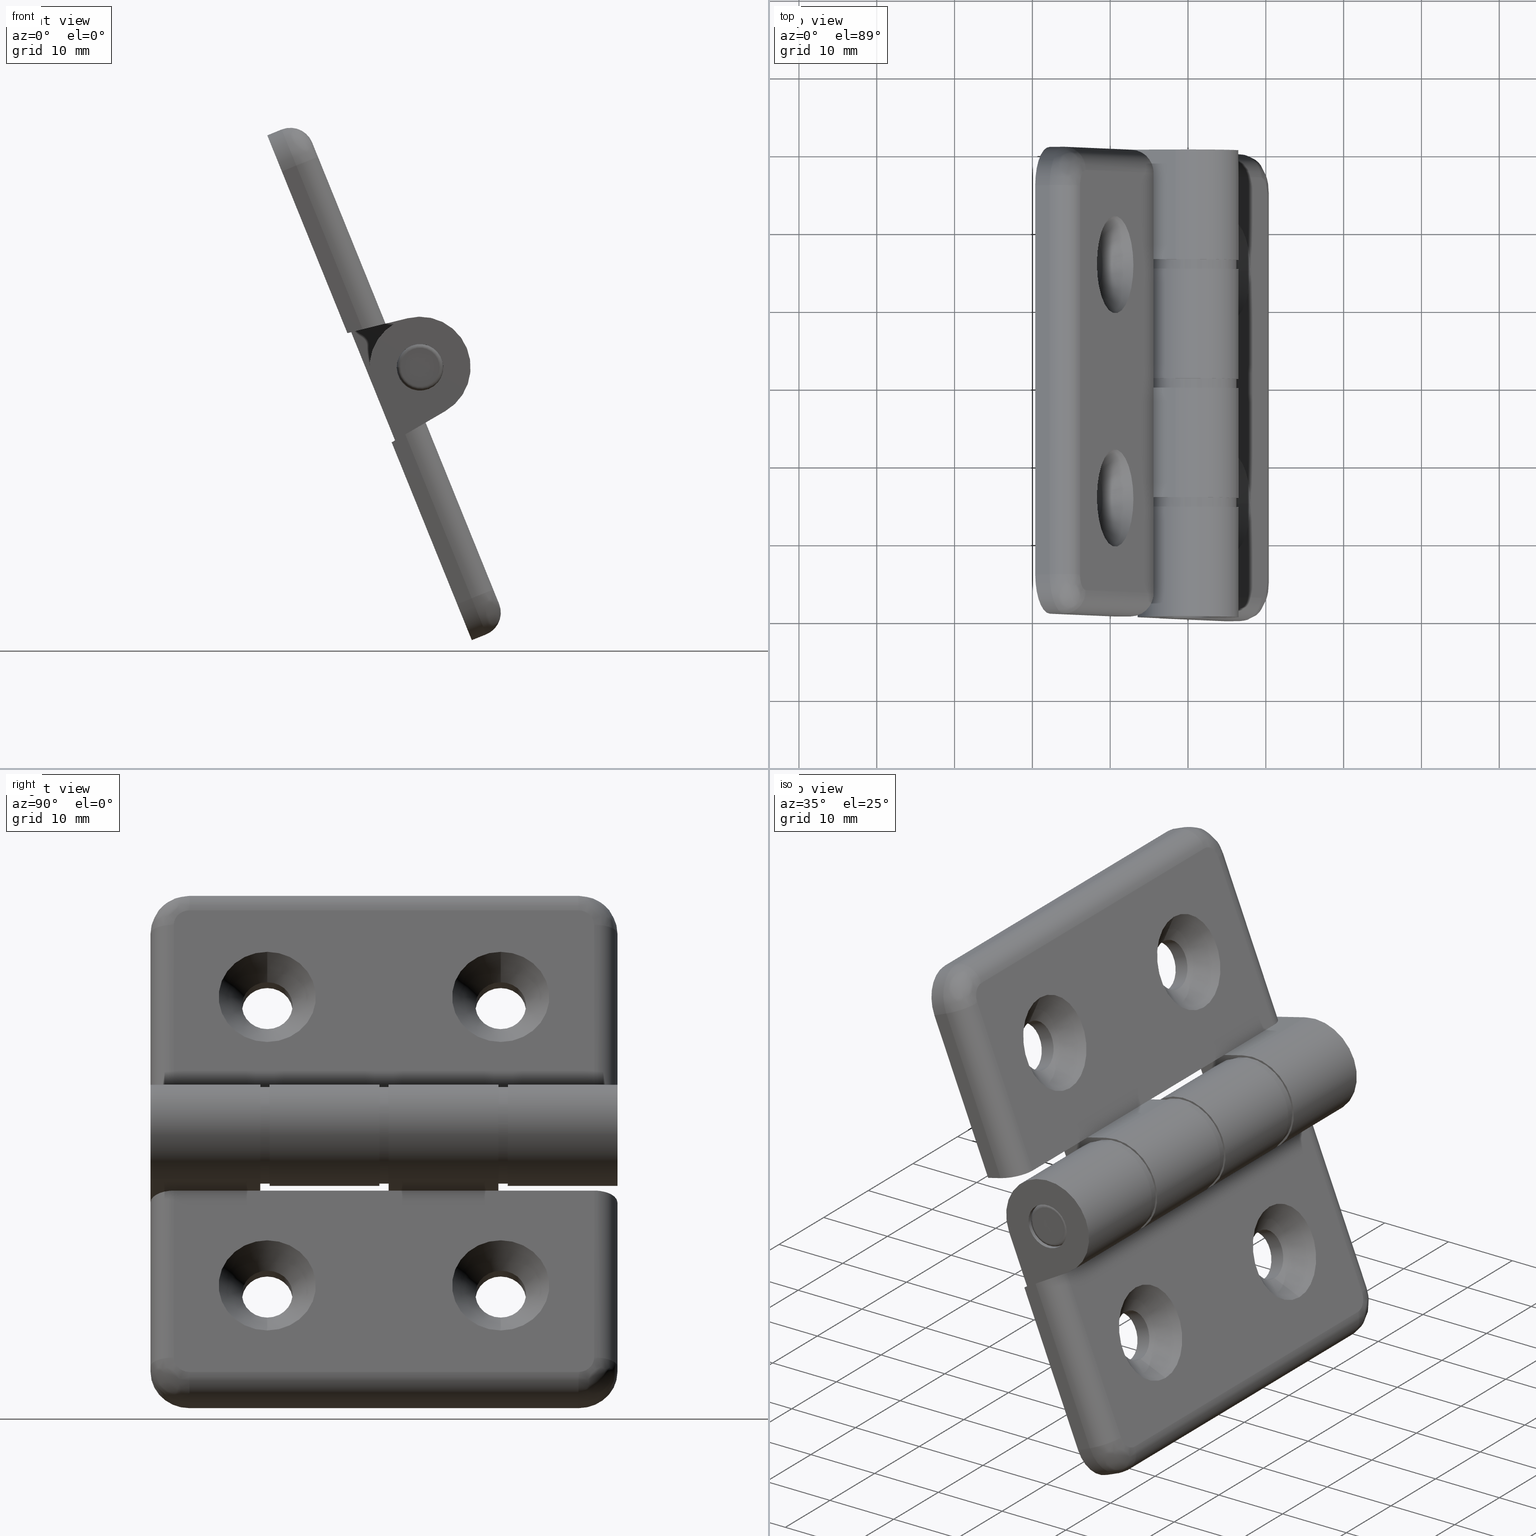
[diagram: canonical four-view strip — front | top / right | iso, engineering-drawing reading convention]
A machine part, canonical four-view strip (front | top / right | iso — engineering-drawing reading convention). The complete STEP part file that produces these views, byte-faithful:
ISO-10303-21;
HEADER;
/* Generated by software containing ST-Developer
 * from STEP Tools, Inc. (www.steptools.com) 
 */

FILE_DESCRIPTION(
/* description */ (''),
/* implementation_level */ '2;1');

FILE_NAME(
/* name */ '\\\\SYNOLOGYNAS\\web\\db2\\HC6070\\\X2\B3C4BA74\X0\\\DR_HC
6070.stp',
/* time_stamp */ '2023-03-06T14:38:37+09:00',
/* author */ ('user'),
/* organization */ (''),
/* preprocessor_version */ 'ST-DEVELOPER v15.6',
/* originating_system */ 'Autodesk Inventor 2015',
/* authorisation */ '');

FILE_SCHEMA (('AUTOMOTIVE_DESIGN { 1 0 10303 214 3 1 1 }'));
ENDSEC;

DATA;
#10=MECHANICAL_DESIGN_GEOMETRIC_PRESENTATION_REPRESENTATION('',(#44,#43,
#45),#1080);
#11=ITEM_DEFINED_TRANSFORMATION($,$,#612,#685);
#12=ITEM_DEFINED_TRANSFORMATION($,$,#665,#686);
#13=ITEM_DEFINED_TRANSFORMATION($,$,#612,#687);
#14=ITEM_DEFINED_TRANSFORMATION($,$,#675,#688);
#15=ITEM_DEFINED_TRANSFORMATION($,$,#675,#689);
#16=ITEM_DEFINED_TRANSFORMATION($,$,#675,#690);
#17=(
REPRESENTATION_RELATIONSHIP($,$,#1101,#1104)
REPRESENTATION_RELATIONSHIP_WITH_TRANSFORMATION(#11)
SHAPE_REPRESENTATION_RELATIONSHIP()
);
#18=(
REPRESENTATION_RELATIONSHIP($,$,#1102,#1104)
REPRESENTATION_RELATIONSHIP_WITH_TRANSFORMATION(#12)
SHAPE_REPRESENTATION_RELATIONSHIP()
);
#19=(
REPRESENTATION_RELATIONSHIP($,$,#1101,#1104)
REPRESENTATION_RELATIONSHIP_WITH_TRANSFORMATION(#13)
SHAPE_REPRESENTATION_RELATIONSHIP()
);
#20=(
REPRESENTATION_RELATIONSHIP($,$,#1103,#1104)
REPRESENTATION_RELATIONSHIP_WITH_TRANSFORMATION(#14)
SHAPE_REPRESENTATION_RELATIONSHIP()
);
#21=(
REPRESENTATION_RELATIONSHIP($,$,#1103,#1104)
REPRESENTATION_RELATIONSHIP_WITH_TRANSFORMATION(#15)
SHAPE_REPRESENTATION_RELATIONSHIP()
);
#22=(
REPRESENTATION_RELATIONSHIP($,$,#1103,#1104)
REPRESENTATION_RELATIONSHIP_WITH_TRANSFORMATION(#16)
SHAPE_REPRESENTATION_RELATIONSHIP()
);
#23=CONTEXT_DEPENDENT_SHAPE_REPRESENTATION(#17,#1095);
#24=CONTEXT_DEPENDENT_SHAPE_REPRESENTATION(#18,#1096);
#25=CONTEXT_DEPENDENT_SHAPE_REPRESENTATION(#19,#1097);
#26=CONTEXT_DEPENDENT_SHAPE_REPRESENTATION(#20,#1098);
#27=CONTEXT_DEPENDENT_SHAPE_REPRESENTATION(#21,#1099);
#28=CONTEXT_DEPENDENT_SHAPE_REPRESENTATION(#22,#1100);
#29=NEXT_ASSEMBLY_USAGE_OCCURRENCE('DR_HC6070-40:1',$,$,#1109,#1106,$);
#30=NEXT_ASSEMBLY_USAGE_OCCURRENCE('DR_HC6070-40-PIN:2',$,$,#1109,#1107,
$);
#31=NEXT_ASSEMBLY_USAGE_OCCURRENCE('DR_HC6070-40:2',$,$,#1109,#1106,$);
#32=NEXT_ASSEMBLY_USAGE_OCCURRENCE('DR_HC6060-WASHER:2',$,$,#1109,#1108,
$);
#33=NEXT_ASSEMBLY_USAGE_OCCURRENCE('DR_HC6060-WASHER:3',$,$,#1109,#1108,
$);
#34=NEXT_ASSEMBLY_USAGE_OCCURRENCE('DR_HC6060-WASHER:4',$,$,#1109,#1108,
$);
#35=TOROIDAL_SURFACE('',#666,2.5,0.5);
#36=TOROIDAL_SURFACE('',#672,2.5,0.5);
#37=SHAPE_REPRESENTATION_RELATIONSHIP('SRR','None',#1101,#40);
#38=SHAPE_REPRESENTATION_RELATIONSHIP('SRR','None',#1102,#41);
#39=SHAPE_REPRESENTATION_RELATIONSHIP('SRR','None',#1103,#42);
#40=ADVANCED_BREP_SHAPE_REPRESENTATION($,(#46),#1076);
#41=ADVANCED_BREP_SHAPE_REPRESENTATION($,(#47),#1077);
#42=ADVANCED_BREP_SHAPE_REPRESENTATION($,(#48),#1078);
#43=STYLED_ITEM('',(#1126),#46);
#44=STYLED_ITEM('',(#1127),#47);
#45=STYLED_ITEM('',(#1128),#48);
#46=MANIFOLD_SOLID_BREP('\X2\C194B9ACB4DC\X0\1',#609);
#47=MANIFOLD_SOLID_BREP('\X2\C194B9ACB4DC\X0\1',#610);
#48=MANIFOLD_SOLID_BREP('\X2\C194B9ACB4DC\X0\1',#611);
#49=PLANE('',#636);
#50=PLANE('',#637);
#51=PLANE('',#640);
#52=PLANE('',#643);
#53=PLANE('',#646);
#54=PLANE('',#647);
#55=PLANE('',#650);
#56=PLANE('',#653);
#57=PLANE('',#654);
#58=PLANE('',#655);
#59=PLANE('',#658);
#60=PLANE('',#661);
#61=PLANE('',#664);
#62=PLANE('',#671);
#63=PLANE('',#674);
#64=PLANE('',#682);
#65=PLANE('',#683);
#66=(
BOUNDED_SURFACE()
B_SPLINE_SURFACE(2,2,((#912,#913,#914),(#915,#916,#917),(#918,#919,#920)),
 .UNSPECIFIED.,.F.,.F.,.F.)
B_SPLINE_SURFACE_WITH_KNOTS((3,3),(3,3),(-1.5707963267949,6.50041828025802E-17),
(-3.14159265358979,-1.5707963267949),.UNSPECIFIED.)
GEOMETRIC_REPRESENTATION_ITEM()
RATIONAL_B_SPLINE_SURFACE(((1.,0.707106781186548,1.),(0.707106781186547,
0.5,0.707106781186547),(1.,0.707106781186548,1.)))
REPRESENTATION_ITEM('')
SURFACE()
);
#67=(
BOUNDED_SURFACE()
B_SPLINE_SURFACE(2,2,((#932,#933,#934),(#935,#936,#937),(#938,#939,#940)),
 .UNSPECIFIED.,.F.,.F.,.F.)
B_SPLINE_SURFACE_WITH_KNOTS((3,3),(3,3),(-1.5707963267949,4.62592926927149E-17),
(1.5707963267949,3.14159265358979),.UNSPECIFIED.)
GEOMETRIC_REPRESENTATION_ITEM()
RATIONAL_B_SPLINE_SURFACE(((1.,0.707106781186548,1.),(0.707106781186546,
0.499999999999999,0.707106781186546),(1.,0.707106781186548,1.)))
REPRESENTATION_ITEM('')
SURFACE()
);
#68=ELLIPSE('',#625,3.03076923076923,3.);
#69=ELLIPSE('',#635,3.03076923076923,3.);
#70=LINE('',#908,#107);
#71=LINE('',#911,#108);
#72=LINE('',#930,#109);
#73=LINE('',#931,#110);
#74=LINE('',#950,#111);
#75=LINE('',#951,#112);
#76=LINE('',#954,#113);
#77=LINE('',#956,#114);
#78=LINE('',#958,#115);
#79=LINE('',#960,#116);
#80=LINE('',#962,#117);
#81=LINE('',#964,#118);
#82=LINE('',#966,#119);
#83=LINE('',#968,#120);
#84=LINE('',#970,#121);
#85=LINE('',#971,#122);
#86=LINE('',#974,#123);
#87=LINE('',#975,#124);
#88=LINE('',#978,#125);
#89=LINE('',#982,#126);
#90=LINE('',#983,#127);
#91=LINE('',#986,#128);
#92=LINE('',#990,#129);
#93=LINE('',#993,#130);
#94=LINE('',#994,#131);
#95=LINE('',#999,#132);
#96=LINE('',#1000,#133);
#97=LINE('',#1006,#134);
#98=LINE('',#1007,#135);
#99=LINE('',#1011,#136);
#100=LINE('',#1013,#137);
#101=LINE('',#1019,#138);
#102=LINE('',#1020,#139);
#103=LINE('',#1027,#140);
#104=LINE('',#1028,#141);
#105=LINE('',#1032,#142);
#106=LINE('',#1034,#143);
#107=VECTOR('',#717,23.1461538461538);
#108=VECTOR('',#720,22.7153846153846);
#109=VECTOR('',#731,50.);
#110=VECTOR('',#732,50.);
#111=VECTOR('',#743,23.1461538461538);
#112=VECTOR('',#744,22.7153846153846);
#113=VECTOR('',#747,2.02051282051282);
#114=VECTOR('',#748,60.);
#115=VECTOR('',#749,0.505128205128205);
#116=VECTOR('',#750,14.1);
#117=VECTOR('',#751,4.54615384615384);
#118=VECTOR('',#752,16.5);
#119=VECTOR('',#753,4.54615384615384);
#120=VECTOR('',#754,14.1);
#121=VECTOR('',#755,4.54615384615384);
#122=VECTOR('',#756,12.3);
#123=VECTOR('',#759,1.99999999999999);
#124=VECTOR('',#760,22.4282051282051);
#125=VECTOR('',#763,2.);
#126=VECTOR('',#768,1.99999999999999);
#127=VECTOR('',#769,50.);
#128=VECTOR('',#772,1.99999999999999);
#129=VECTOR('',#777,5.98461538461539);
#130=VECTOR('',#780,7.5);
#131=VECTOR('',#781,22.4282051282051);
#132=VECTOR('',#788,14.1);
#133=VECTOR('',#789,11.1);
#134=VECTOR('',#796,2.95384615384616);
#135=VECTOR('',#797,14.1);
#136=VECTOR('',#802,14.1);
#137=VECTOR('',#805,7.5);
#138=VECTOR('',#812,2.95384615384616);
#139=VECTOR('',#813,7.5);
#140=VECTOR('',#820,7.5);
#141=VECTOR('',#821,2.95384615384616);
#142=VECTOR('',#826,14.1);
#143=VECTOR('',#829,14.1);
#144=CYLINDRICAL_SURFACE('',#616,3.25);
#145=CYLINDRICAL_SURFACE('',#621,3.25);
#146=CYLINDRICAL_SURFACE('',#623,3.);
#147=CYLINDRICAL_SURFACE('',#629,3.);
#148=CYLINDRICAL_SURFACE('',#634,3.);
#149=CYLINDRICAL_SURFACE('',#638,5.);
#150=CYLINDRICAL_SURFACE('',#641,5.);
#151=CYLINDRICAL_SURFACE('',#648,3.);
#152=CYLINDRICAL_SURFACE('',#651,6.5);
#153=CYLINDRICAL_SURFACE('',#662,6.5);
#154=CYLINDRICAL_SURFACE('',#663,3.);
#155=CYLINDRICAL_SURFACE('',#669,3.);
#156=CYLINDRICAL_SURFACE('',#676,3.);
#157=CYLINDRICAL_SURFACE('',#679,6.25);
#158=FACE_BOUND('',#217,.T.);
#159=FACE_BOUND('',#219,.T.);
#160=FACE_BOUND('',#221,.T.);
#161=FACE_BOUND('',#223,.T.);
#162=FACE_BOUND('',#235,.T.);
#163=FACE_BOUND('',#237,.T.);
#164=FACE_BOUND('',#238,.T.);
#165=FACE_BOUND('',#240,.T.);
#166=FACE_BOUND('',#241,.T.);
#167=FACE_BOUND('',#243,.T.);
#168=FACE_BOUND('',#248,.T.);
#169=FACE_BOUND('',#250,.T.);
#170=FACE_BOUND('',#252,.T.);
#171=FACE_BOUND('',#256,.T.);
#172=FACE_BOUND('',#259,.T.);
#173=FACE_BOUND('',#261,.T.);
#174=FACE_BOUND('',#264,.T.);
#175=FACE_BOUND('',#267,.T.);
#176=FACE_BOUND('',#269,.T.);
#177=FACE_BOUND('',#271,.T.);
#178=FACE_BOUND('',#273,.T.);
#179=FACE_OUTER_BOUND('',#216,.T.);
#180=FACE_OUTER_BOUND('',#218,.T.);
#181=FACE_OUTER_BOUND('',#220,.T.);
#182=FACE_OUTER_BOUND('',#222,.T.);
#183=FACE_OUTER_BOUND('',#224,.T.);
#184=FACE_OUTER_BOUND('',#225,.T.);
#185=FACE_OUTER_BOUND('',#226,.T.);
#186=FACE_OUTER_BOUND('',#227,.T.);
#187=FACE_OUTER_BOUND('',#228,.T.);
#188=FACE_OUTER_BOUND('',#229,.T.);
#189=FACE_OUTER_BOUND('',#230,.T.);
#190=FACE_OUTER_BOUND('',#231,.T.);
#191=FACE_OUTER_BOUND('',#232,.T.);
#192=FACE_OUTER_BOUND('',#233,.T.);
#193=FACE_OUTER_BOUND('',#234,.T.);
#194=FACE_OUTER_BOUND('',#236,.T.);
#195=FACE_OUTER_BOUND('',#239,.T.);
#196=FACE_OUTER_BOUND('',#242,.T.);
#197=FACE_OUTER_BOUND('',#244,.T.);
#198=FACE_OUTER_BOUND('',#245,.T.);
#199=FACE_OUTER_BOUND('',#246,.T.);
#200=FACE_OUTER_BOUND('',#247,.T.);
#201=FACE_OUTER_BOUND('',#249,.T.);
#202=FACE_OUTER_BOUND('',#251,.T.);
#203=FACE_OUTER_BOUND('',#253,.T.);
#204=FACE_OUTER_BOUND('',#254,.T.);
#205=FACE_OUTER_BOUND('',#255,.T.);
#206=FACE_OUTER_BOUND('',#257,.T.);
#207=FACE_OUTER_BOUND('',#258,.T.);
#208=FACE_OUTER_BOUND('',#260,.T.);
#209=FACE_OUTER_BOUND('',#262,.T.);
#210=FACE_OUTER_BOUND('',#263,.T.);
#211=FACE_OUTER_BOUND('',#265,.T.);
#212=FACE_OUTER_BOUND('',#266,.T.);
#213=FACE_OUTER_BOUND('',#268,.T.);
#214=FACE_OUTER_BOUND('',#270,.T.);
#215=FACE_OUTER_BOUND('',#272,.T.);
#216=EDGE_LOOP('',(#428));
#217=EDGE_LOOP('',(#429));
#218=EDGE_LOOP('',(#430));
#219=EDGE_LOOP('',(#431));
#220=EDGE_LOOP('',(#432));
#221=EDGE_LOOP('',(#433));
#222=EDGE_LOOP('',(#434));
#223=EDGE_LOOP('',(#435));
#224=EDGE_LOOP('',(#436,#437,#438,#439));
#225=EDGE_LOOP('',(#440,#441,#442,#443));
#226=EDGE_LOOP('',(#444,#445,#446,#447));
#227=EDGE_LOOP('',(#448,#449,#450,#451));
#228=EDGE_LOOP('',(#452,#453,#454,#455));
#229=EDGE_LOOP('',(#456,#457,#458,#459,#460,#461,#462,#463,#464,#465,#466));
#230=EDGE_LOOP('',(#467,#468,#469,#470));
#231=EDGE_LOOP('',(#471,#472,#473,#474));
#232=EDGE_LOOP('',(#475,#476,#477,#478));
#233=EDGE_LOOP('',(#479,#480,#481,#482));
#234=EDGE_LOOP('',(#483,#484,#485,#486,#487,#488,#489));
#235=EDGE_LOOP('',(#490));
#236=EDGE_LOOP('',(#491,#492,#493,#494,#495,#496));
#237=EDGE_LOOP('',(#497));
#238=EDGE_LOOP('',(#498));
#239=EDGE_LOOP('',(#499,#500,#501,#502,#503,#504,#505,#506,#507));
#240=EDGE_LOOP('',(#508));
#241=EDGE_LOOP('',(#509));
#242=EDGE_LOOP('',(#510));
#243=EDGE_LOOP('',(#511));
#244=EDGE_LOOP('',(#512,#513,#514,#515,#516));
#245=EDGE_LOOP('',(#517,#518,#519,#520));
#246=EDGE_LOOP('',(#521,#522,#523,#524));
#247=EDGE_LOOP('',(#525,#526,#527,#528));
#248=EDGE_LOOP('',(#529));
#249=EDGE_LOOP('',(#530,#531,#532,#533));
#250=EDGE_LOOP('',(#534));
#251=EDGE_LOOP('',(#535,#536,#537,#538));
#252=EDGE_LOOP('',(#539));
#253=EDGE_LOOP('',(#540,#541,#542,#543));
#254=EDGE_LOOP('',(#544,#545,#546,#547));
#255=EDGE_LOOP('',(#548));
#256=EDGE_LOOP('',(#549));
#257=EDGE_LOOP('',(#550,#551,#552,#553));
#258=EDGE_LOOP('',(#554));
#259=EDGE_LOOP('',(#555));
#260=EDGE_LOOP('',(#556));
#261=EDGE_LOOP('',(#557));
#262=EDGE_LOOP('',(#558));
#263=EDGE_LOOP('',(#559));
#264=EDGE_LOOP('',(#560));
#265=EDGE_LOOP('',(#561));
#266=EDGE_LOOP('',(#562));
#267=EDGE_LOOP('',(#563));
#268=EDGE_LOOP('',(#564));
#269=EDGE_LOOP('',(#565));
#270=EDGE_LOOP('',(#566));
#271=EDGE_LOOP('',(#567));
#272=EDGE_LOOP('',(#568));
#273=EDGE_LOOP('',(#569));
#274=CIRCLE('',#614,6.25);
#275=CIRCLE('',#615,3.25);
#276=CIRCLE('',#617,3.25);
#277=CIRCLE('',#619,6.25);
#278=CIRCLE('',#620,3.25);
#279=CIRCLE('',#622,3.25);
#280=CIRCLE('',#624,3.);
#281=CIRCLE('',#626,3.);
#282=CIRCLE('',#627,2.);
#283=CIRCLE('',#628,5.);
#284=CIRCLE('',#630,3.);
#285=CIRCLE('',#631,3.00000000000001);
#286=CIRCLE('',#632,2.);
#287=CIRCLE('',#633,5.);
#288=CIRCLE('',#639,5.);
#289=CIRCLE('',#642,5.);
#290=CIRCLE('',#644,6.5);
#291=CIRCLE('',#645,3.);
#292=CIRCLE('',#649,3.);
#293=CIRCLE('',#652,6.5);
#294=CIRCLE('',#656,6.5);
#295=CIRCLE('',#657,3.);
#296=CIRCLE('',#659,6.5);
#297=CIRCLE('',#660,3.);
#298=CIRCLE('',#667,3.);
#299=CIRCLE('',#668,2.5);
#300=CIRCLE('',#670,3.);
#301=CIRCLE('',#673,2.5);
#302=CIRCLE('',#677,3.);
#303=CIRCLE('',#678,3.);
#304=CIRCLE('',#680,6.25);
#305=CIRCLE('',#681,6.25);
#306=VERTEX_POINT('',#888);
#307=VERTEX_POINT('',#890);
#308=VERTEX_POINT('',#893);
#309=VERTEX_POINT('',#896);
#310=VERTEX_POINT('',#898);
#311=VERTEX_POINT('',#901);
#312=VERTEX_POINT('',#904);
#313=VERTEX_POINT('',#905);
#314=VERTEX_POINT('',#907);
#315=VERTEX_POINT('',#909);
#316=VERTEX_POINT('',#921);
#317=VERTEX_POINT('',#922);
#318=VERTEX_POINT('',#927);
#319=VERTEX_POINT('',#928);
#320=VERTEX_POINT('',#941);
#321=VERTEX_POINT('',#942);
#322=VERTEX_POINT('',#947);
#323=VERTEX_POINT('',#948);
#324=VERTEX_POINT('',#953);
#325=VERTEX_POINT('',#955);
#326=VERTEX_POINT('',#957);
#327=VERTEX_POINT('',#959);
#328=VERTEX_POINT('',#961);
#329=VERTEX_POINT('',#963);
#330=VERTEX_POINT('',#965);
#331=VERTEX_POINT('',#967);
#332=VERTEX_POINT('',#969);
#333=VERTEX_POINT('',#973);
#334=VERTEX_POINT('',#977);
#335=VERTEX_POINT('',#981);
#336=VERTEX_POINT('',#985);
#337=VERTEX_POINT('',#989);
#338=VERTEX_POINT('',#991);
#339=VERTEX_POINT('',#995);
#340=VERTEX_POINT('',#1002);
#341=VERTEX_POINT('',#1005);
#342=VERTEX_POINT('',#1009);
#343=VERTEX_POINT('',#1016);
#344=VERTEX_POINT('',#1017);
#345=VERTEX_POINT('',#1021);
#346=VERTEX_POINT('',#1024);
#347=VERTEX_POINT('',#1025);
#348=VERTEX_POINT('',#1029);
#349=VERTEX_POINT('',#1039);
#350=VERTEX_POINT('',#1041);
#351=VERTEX_POINT('',#1044);
#352=VERTEX_POINT('',#1048);
#353=VERTEX_POINT('',#1053);
#354=VERTEX_POINT('',#1055);
#355=VERTEX_POINT('',#1058);
#356=VERTEX_POINT('',#1060);
#357=EDGE_CURVE('',#306,#306,#274,.T.);
#358=EDGE_CURVE('',#307,#307,#275,.T.);
#359=EDGE_CURVE('',#308,#308,#276,.T.);
#360=EDGE_CURVE('',#309,#309,#277,.T.);
#361=EDGE_CURVE('',#310,#310,#278,.T.);
#362=EDGE_CURVE('',#311,#311,#279,.T.);
#363=EDGE_CURVE('',#312,#313,#280,.T.);
#364=EDGE_CURVE('',#313,#314,#70,.T.);
#365=EDGE_CURVE('',#314,#315,#68,.F.);
#366=EDGE_CURVE('',#315,#312,#71,.T.);
#367=EDGE_CURVE('',#316,#317,#281,.T.);
#368=EDGE_CURVE('',#317,#313,#282,.T.);
#369=EDGE_CURVE('',#312,#316,#283,.T.);
#370=EDGE_CURVE('',#318,#319,#284,.T.);
#371=EDGE_CURVE('',#319,#317,#72,.T.);
#372=EDGE_CURVE('',#316,#318,#73,.T.);
#373=EDGE_CURVE('',#320,#321,#285,.T.);
#374=EDGE_CURVE('',#321,#319,#286,.T.);
#375=EDGE_CURVE('',#318,#320,#287,.T.);
#376=EDGE_CURVE('',#322,#323,#69,.T.);
#377=EDGE_CURVE('',#323,#321,#74,.T.);
#378=EDGE_CURVE('',#320,#322,#75,.T.);
#379=EDGE_CURVE('',#322,#324,#76,.T.);
#380=EDGE_CURVE('',#324,#325,#77,.T.);
#381=EDGE_CURVE('',#325,#326,#78,.T.);
#382=EDGE_CURVE('',#326,#327,#79,.T.);
#383=EDGE_CURVE('',#327,#328,#80,.T.);
#384=EDGE_CURVE('',#328,#329,#81,.T.);
#385=EDGE_CURVE('',#329,#330,#82,.T.);
#386=EDGE_CURVE('',#330,#331,#83,.T.);
#387=EDGE_CURVE('',#331,#332,#84,.T.);
#388=EDGE_CURVE('',#332,#323,#85,.T.);
#389=EDGE_CURVE('',#333,#320,#86,.T.);
#390=EDGE_CURVE('',#333,#324,#87,.T.);
#391=EDGE_CURVE('',#318,#334,#88,.T.);
#392=EDGE_CURVE('',#334,#333,#288,.T.);
#393=EDGE_CURVE('',#335,#316,#89,.T.);
#394=EDGE_CURVE('',#335,#334,#90,.T.);
#395=EDGE_CURVE('',#312,#336,#91,.T.);
#396=EDGE_CURVE('',#336,#335,#289,.T.);
#397=EDGE_CURVE('',#337,#315,#92,.T.);
#398=EDGE_CURVE('',#338,#337,#290,.T.);
#399=EDGE_CURVE('',#326,#338,#93,.T.);
#400=EDGE_CURVE('',#336,#325,#94,.T.);
#401=EDGE_CURVE('',#339,#339,#291,.T.);
#402=EDGE_CURVE('',#329,#332,#95,.T.);
#403=EDGE_CURVE('',#314,#328,#96,.T.);
#404=EDGE_CURVE('',#340,#340,#292,.T.);
#405=EDGE_CURVE('',#328,#341,#97,.T.);
#406=EDGE_CURVE('',#337,#341,#98,.T.);
#407=EDGE_CURVE('',#341,#342,#293,.T.);
#408=EDGE_CURVE('',#338,#342,#99,.T.);
#409=EDGE_CURVE('',#342,#327,#100,.T.);
#410=EDGE_CURVE('',#343,#344,#294,.T.);
#411=EDGE_CURVE('',#332,#343,#101,.T.);
#412=EDGE_CURVE('',#344,#331,#102,.T.);
#413=EDGE_CURVE('',#345,#345,#295,.T.);
#414=EDGE_CURVE('',#346,#347,#296,.T.);
#415=EDGE_CURVE('',#330,#346,#103,.T.);
#416=EDGE_CURVE('',#347,#329,#104,.T.);
#417=EDGE_CURVE('',#348,#348,#297,.T.);
#418=EDGE_CURVE('',#346,#344,#105,.T.);
#419=EDGE_CURVE('',#347,#343,#106,.T.);
#420=EDGE_CURVE('',#349,#349,#298,.T.);
#421=EDGE_CURVE('',#350,#350,#299,.T.);
#422=EDGE_CURVE('',#351,#351,#300,.T.);
#423=EDGE_CURVE('',#352,#352,#301,.T.);
#424=EDGE_CURVE('',#353,#353,#302,.T.);
#425=EDGE_CURVE('',#354,#354,#303,.T.);
#426=EDGE_CURVE('',#355,#355,#304,.T.);
#427=EDGE_CURVE('',#356,#356,#305,.T.);
#428=ORIENTED_EDGE('',*,*,#357,.F.);
#429=ORIENTED_EDGE('',*,*,#358,.F.);
#430=ORIENTED_EDGE('',*,*,#359,.F.);
#431=ORIENTED_EDGE('',*,*,#358,.T.);
#432=ORIENTED_EDGE('',*,*,#360,.F.);
#433=ORIENTED_EDGE('',*,*,#361,.F.);
#434=ORIENTED_EDGE('',*,*,#362,.F.);
#435=ORIENTED_EDGE('',*,*,#361,.T.);
#436=ORIENTED_EDGE('',*,*,#363,.T.);
#437=ORIENTED_EDGE('',*,*,#364,.T.);
#438=ORIENTED_EDGE('',*,*,#365,.T.);
#439=ORIENTED_EDGE('',*,*,#366,.T.);
#440=ORIENTED_EDGE('',*,*,#367,.T.);
#441=ORIENTED_EDGE('',*,*,#368,.T.);
#442=ORIENTED_EDGE('',*,*,#363,.F.);
#443=ORIENTED_EDGE('',*,*,#369,.T.);
#444=ORIENTED_EDGE('',*,*,#370,.T.);
#445=ORIENTED_EDGE('',*,*,#371,.T.);
#446=ORIENTED_EDGE('',*,*,#367,.F.);
#447=ORIENTED_EDGE('',*,*,#372,.T.);
#448=ORIENTED_EDGE('',*,*,#373,.T.);
#449=ORIENTED_EDGE('',*,*,#374,.T.);
#450=ORIENTED_EDGE('',*,*,#370,.F.);
#451=ORIENTED_EDGE('',*,*,#375,.T.);
#452=ORIENTED_EDGE('',*,*,#376,.T.);
#453=ORIENTED_EDGE('',*,*,#377,.T.);
#454=ORIENTED_EDGE('',*,*,#373,.F.);
#455=ORIENTED_EDGE('',*,*,#378,.T.);
#456=ORIENTED_EDGE('',*,*,#376,.F.);
#457=ORIENTED_EDGE('',*,*,#379,.T.);
#458=ORIENTED_EDGE('',*,*,#380,.T.);
#459=ORIENTED_EDGE('',*,*,#381,.T.);
#460=ORIENTED_EDGE('',*,*,#382,.T.);
#461=ORIENTED_EDGE('',*,*,#383,.T.);
#462=ORIENTED_EDGE('',*,*,#384,.T.);
#463=ORIENTED_EDGE('',*,*,#385,.T.);
#464=ORIENTED_EDGE('',*,*,#386,.T.);
#465=ORIENTED_EDGE('',*,*,#387,.T.);
#466=ORIENTED_EDGE('',*,*,#388,.T.);
#467=ORIENTED_EDGE('',*,*,#378,.F.);
#468=ORIENTED_EDGE('',*,*,#389,.F.);
#469=ORIENTED_EDGE('',*,*,#390,.T.);
#470=ORIENTED_EDGE('',*,*,#379,.F.);
#471=ORIENTED_EDGE('',*,*,#375,.F.);
#472=ORIENTED_EDGE('',*,*,#391,.T.);
#473=ORIENTED_EDGE('',*,*,#392,.T.);
#474=ORIENTED_EDGE('',*,*,#389,.T.);
#475=ORIENTED_EDGE('',*,*,#372,.F.);
#476=ORIENTED_EDGE('',*,*,#393,.F.);
#477=ORIENTED_EDGE('',*,*,#394,.T.);
#478=ORIENTED_EDGE('',*,*,#391,.F.);
#479=ORIENTED_EDGE('',*,*,#369,.F.);
#480=ORIENTED_EDGE('',*,*,#395,.T.);
#481=ORIENTED_EDGE('',*,*,#396,.T.);
#482=ORIENTED_EDGE('',*,*,#393,.T.);
#483=ORIENTED_EDGE('',*,*,#366,.F.);
#484=ORIENTED_EDGE('',*,*,#397,.F.);
#485=ORIENTED_EDGE('',*,*,#398,.F.);
#486=ORIENTED_EDGE('',*,*,#399,.F.);
#487=ORIENTED_EDGE('',*,*,#381,.F.);
#488=ORIENTED_EDGE('',*,*,#400,.F.);
#489=ORIENTED_EDGE('',*,*,#395,.F.);
#490=ORIENTED_EDGE('',*,*,#401,.T.);
#491=ORIENTED_EDGE('',*,*,#392,.F.);
#492=ORIENTED_EDGE('',*,*,#394,.F.);
#493=ORIENTED_EDGE('',*,*,#396,.F.);
#494=ORIENTED_EDGE('',*,*,#400,.T.);
#495=ORIENTED_EDGE('',*,*,#380,.F.);
#496=ORIENTED_EDGE('',*,*,#390,.F.);
#497=ORIENTED_EDGE('',*,*,#359,.T.);
#498=ORIENTED_EDGE('',*,*,#362,.T.);
#499=ORIENTED_EDGE('',*,*,#377,.F.);
#500=ORIENTED_EDGE('',*,*,#388,.F.);
#501=ORIENTED_EDGE('',*,*,#402,.F.);
#502=ORIENTED_EDGE('',*,*,#384,.F.);
#503=ORIENTED_EDGE('',*,*,#403,.F.);
#504=ORIENTED_EDGE('',*,*,#364,.F.);
#505=ORIENTED_EDGE('',*,*,#368,.F.);
#506=ORIENTED_EDGE('',*,*,#371,.F.);
#507=ORIENTED_EDGE('',*,*,#374,.F.);
#508=ORIENTED_EDGE('',*,*,#357,.T.);
#509=ORIENTED_EDGE('',*,*,#360,.T.);
#510=ORIENTED_EDGE('',*,*,#401,.F.);
#511=ORIENTED_EDGE('',*,*,#404,.T.);
#512=ORIENTED_EDGE('',*,*,#403,.T.);
#513=ORIENTED_EDGE('',*,*,#405,.T.);
#514=ORIENTED_EDGE('',*,*,#406,.F.);
#515=ORIENTED_EDGE('',*,*,#397,.T.);
#516=ORIENTED_EDGE('',*,*,#365,.F.);
#517=ORIENTED_EDGE('',*,*,#407,.T.);
#518=ORIENTED_EDGE('',*,*,#408,.F.);
#519=ORIENTED_EDGE('',*,*,#398,.T.);
#520=ORIENTED_EDGE('',*,*,#406,.T.);
#521=ORIENTED_EDGE('',*,*,#409,.T.);
#522=ORIENTED_EDGE('',*,*,#382,.F.);
#523=ORIENTED_EDGE('',*,*,#399,.T.);
#524=ORIENTED_EDGE('',*,*,#408,.T.);
#525=ORIENTED_EDGE('',*,*,#407,.F.);
#526=ORIENTED_EDGE('',*,*,#405,.F.);
#527=ORIENTED_EDGE('',*,*,#383,.F.);
#528=ORIENTED_EDGE('',*,*,#409,.F.);
#529=ORIENTED_EDGE('',*,*,#404,.F.);
#530=ORIENTED_EDGE('',*,*,#410,.F.);
#531=ORIENTED_EDGE('',*,*,#411,.F.);
#532=ORIENTED_EDGE('',*,*,#387,.F.);
#533=ORIENTED_EDGE('',*,*,#412,.F.);
#534=ORIENTED_EDGE('',*,*,#413,.F.);
#535=ORIENTED_EDGE('',*,*,#414,.F.);
#536=ORIENTED_EDGE('',*,*,#415,.F.);
#537=ORIENTED_EDGE('',*,*,#385,.F.);
#538=ORIENTED_EDGE('',*,*,#416,.F.);
#539=ORIENTED_EDGE('',*,*,#417,.F.);
#540=ORIENTED_EDGE('',*,*,#412,.T.);
#541=ORIENTED_EDGE('',*,*,#386,.F.);
#542=ORIENTED_EDGE('',*,*,#415,.T.);
#543=ORIENTED_EDGE('',*,*,#418,.T.);
#544=ORIENTED_EDGE('',*,*,#410,.T.);
#545=ORIENTED_EDGE('',*,*,#418,.F.);
#546=ORIENTED_EDGE('',*,*,#414,.T.);
#547=ORIENTED_EDGE('',*,*,#419,.T.);
#548=ORIENTED_EDGE('',*,*,#413,.T.);
#549=ORIENTED_EDGE('',*,*,#417,.T.);
#550=ORIENTED_EDGE('',*,*,#402,.T.);
#551=ORIENTED_EDGE('',*,*,#411,.T.);
#552=ORIENTED_EDGE('',*,*,#419,.F.);
#553=ORIENTED_EDGE('',*,*,#416,.T.);
#554=ORIENTED_EDGE('',*,*,#420,.T.);
#555=ORIENTED_EDGE('',*,*,#421,.T.);
#556=ORIENTED_EDGE('',*,*,#422,.F.);
#557=ORIENTED_EDGE('',*,*,#420,.F.);
#558=ORIENTED_EDGE('',*,*,#421,.F.);
#559=ORIENTED_EDGE('',*,*,#422,.T.);
#560=ORIENTED_EDGE('',*,*,#423,.T.);
#561=ORIENTED_EDGE('',*,*,#423,.F.);
#562=ORIENTED_EDGE('',*,*,#424,.F.);
#563=ORIENTED_EDGE('',*,*,#425,.F.);
#564=ORIENTED_EDGE('',*,*,#426,.F.);
#565=ORIENTED_EDGE('',*,*,#427,.F.);
#566=ORIENTED_EDGE('',*,*,#426,.T.);
#567=ORIENTED_EDGE('',*,*,#424,.T.);
#568=ORIENTED_EDGE('',*,*,#427,.T.);
#569=ORIENTED_EDGE('',*,*,#425,.T.);
#570=CONICAL_SURFACE('',#613,4.75,45.);
#571=CONICAL_SURFACE('',#618,4.75,45.);
#572=ADVANCED_FACE('',(#179,#158),#570,.F.);
#573=ADVANCED_FACE('',(#180,#159),#144,.F.);
#574=ADVANCED_FACE('',(#181,#160),#571,.F.);
#575=ADVANCED_FACE('',(#182,#161),#145,.F.);
#576=ADVANCED_FACE('',(#183),#146,.T.);
#577=ADVANCED_FACE('',(#184),#66,.F.);
#578=ADVANCED_FACE('',(#185),#147,.T.);
#579=ADVANCED_FACE('',(#186),#67,.F.);
#580=ADVANCED_FACE('',(#187),#148,.T.);
#581=ADVANCED_FACE('',(#188),#49,.F.);
#582=ADVANCED_FACE('',(#189),#50,.T.);
#583=ADVANCED_FACE('',(#190),#149,.T.);
#584=ADVANCED_FACE('',(#191),#51,.T.);
#585=ADVANCED_FACE('',(#192),#150,.T.);
#586=ADVANCED_FACE('',(#193,#162),#52,.F.);
#587=ADVANCED_FACE('',(#194,#163,#164),#53,.T.);
#588=ADVANCED_FACE('',(#195,#165,#166),#54,.T.);
#589=ADVANCED_FACE('',(#196,#167),#151,.F.);
#590=ADVANCED_FACE('',(#197),#55,.T.);
#591=ADVANCED_FACE('',(#198),#152,.T.);
#592=ADVANCED_FACE('',(#199),#56,.T.);
#593=ADVANCED_FACE('',(#200,#168),#57,.F.);
#594=ADVANCED_FACE('',(#201,#169),#58,.F.);
#595=ADVANCED_FACE('',(#202,#170),#59,.F.);
#596=ADVANCED_FACE('',(#203),#60,.T.);
#597=ADVANCED_FACE('',(#204),#153,.T.);
#598=ADVANCED_FACE('',(#205,#171),#154,.F.);
#599=ADVANCED_FACE('',(#206),#61,.T.);
#600=ADVANCED_FACE('',(#207,#172),#35,.T.);
#601=ADVANCED_FACE('',(#208,#173),#155,.T.);
#602=ADVANCED_FACE('',(#209),#62,.F.);
#603=ADVANCED_FACE('',(#210,#174),#36,.T.);
#604=ADVANCED_FACE('',(#211),#63,.T.);
#605=ADVANCED_FACE('',(#212,#175),#156,.F.);
#606=ADVANCED_FACE('',(#213,#176),#157,.T.);
#607=ADVANCED_FACE('',(#214,#177),#64,.T.);
#608=ADVANCED_FACE('',(#215,#178),#65,.F.);
#609=CLOSED_SHELL('',(#572,#573,#574,#575,#576,#577,#578,#579,#580,#581,
#582,#583,#584,#585,#586,#587,#588,#589,#590,#591,#592,#593,#594,#595,#596,
#597,#598,#599));
#610=CLOSED_SHELL('',(#600,#601,#602,#603,#604));
#611=CLOSED_SHELL('',(#605,#606,#607,#608));
#612=AXIS2_PLACEMENT_3D('placement',#886,#691,#692);
#613=AXIS2_PLACEMENT_3D('',#887,#693,#694);
#614=AXIS2_PLACEMENT_3D('',#889,#695,#696);
#615=AXIS2_PLACEMENT_3D('',#891,#697,#698);
#616=AXIS2_PLACEMENT_3D('',#892,#699,#700);
#617=AXIS2_PLACEMENT_3D('',#894,#701,#702);
#618=AXIS2_PLACEMENT_3D('',#895,#703,#704);
#619=AXIS2_PLACEMENT_3D('',#897,#705,#706);
#620=AXIS2_PLACEMENT_3D('',#899,#707,#708);
#621=AXIS2_PLACEMENT_3D('',#900,#709,#710);
#622=AXIS2_PLACEMENT_3D('',#902,#711,#712);
#623=AXIS2_PLACEMENT_3D('',#903,#713,#714);
#624=AXIS2_PLACEMENT_3D('',#906,#715,#716);
#625=AXIS2_PLACEMENT_3D('',#910,#718,#719);
#626=AXIS2_PLACEMENT_3D('',#923,#721,#722);
#627=AXIS2_PLACEMENT_3D('',#924,#723,#724);
#628=AXIS2_PLACEMENT_3D('',#925,#725,#726);
#629=AXIS2_PLACEMENT_3D('',#926,#727,#728);
#630=AXIS2_PLACEMENT_3D('',#929,#729,#730);
#631=AXIS2_PLACEMENT_3D('',#943,#733,#734);
#632=AXIS2_PLACEMENT_3D('',#944,#735,#736);
#633=AXIS2_PLACEMENT_3D('',#945,#737,#738);
#634=AXIS2_PLACEMENT_3D('',#946,#739,#740);
#635=AXIS2_PLACEMENT_3D('',#949,#741,#742);
#636=AXIS2_PLACEMENT_3D('',#952,#745,#746);
#637=AXIS2_PLACEMENT_3D('',#972,#757,#758);
#638=AXIS2_PLACEMENT_3D('',#976,#761,#762);
#639=AXIS2_PLACEMENT_3D('',#979,#764,#765);
#640=AXIS2_PLACEMENT_3D('',#980,#766,#767);
#641=AXIS2_PLACEMENT_3D('',#984,#770,#771);
#642=AXIS2_PLACEMENT_3D('',#987,#773,#774);
#643=AXIS2_PLACEMENT_3D('',#988,#775,#776);
#644=AXIS2_PLACEMENT_3D('',#992,#778,#779);
#645=AXIS2_PLACEMENT_3D('',#996,#782,#783);
#646=AXIS2_PLACEMENT_3D('',#997,#784,#785);
#647=AXIS2_PLACEMENT_3D('',#998,#786,#787);
#648=AXIS2_PLACEMENT_3D('',#1001,#790,#791);
#649=AXIS2_PLACEMENT_3D('',#1003,#792,#793);
#650=AXIS2_PLACEMENT_3D('',#1004,#794,#795);
#651=AXIS2_PLACEMENT_3D('',#1008,#798,#799);
#652=AXIS2_PLACEMENT_3D('',#1010,#800,#801);
#653=AXIS2_PLACEMENT_3D('',#1012,#803,#804);
#654=AXIS2_PLACEMENT_3D('',#1014,#806,#807);
#655=AXIS2_PLACEMENT_3D('',#1015,#808,#809);
#656=AXIS2_PLACEMENT_3D('',#1018,#810,#811);
#657=AXIS2_PLACEMENT_3D('',#1022,#814,#815);
#658=AXIS2_PLACEMENT_3D('',#1023,#816,#817);
#659=AXIS2_PLACEMENT_3D('',#1026,#818,#819);
#660=AXIS2_PLACEMENT_3D('',#1030,#822,#823);
#661=AXIS2_PLACEMENT_3D('',#1031,#824,#825);
#662=AXIS2_PLACEMENT_3D('',#1033,#827,#828);
#663=AXIS2_PLACEMENT_3D('',#1035,#830,#831);
#664=AXIS2_PLACEMENT_3D('',#1036,#832,#833);
#665=AXIS2_PLACEMENT_3D('placement',#1037,#834,#835);
#666=AXIS2_PLACEMENT_3D('',#1038,#836,#837);
#667=AXIS2_PLACEMENT_3D('',#1040,#838,#839);
#668=AXIS2_PLACEMENT_3D('',#1042,#840,#841);
#669=AXIS2_PLACEMENT_3D('',#1043,#842,#843);
#670=AXIS2_PLACEMENT_3D('',#1045,#844,#845);
#671=AXIS2_PLACEMENT_3D('',#1046,#846,#847);
#672=AXIS2_PLACEMENT_3D('',#1047,#848,#849);
#673=AXIS2_PLACEMENT_3D('',#1049,#850,#851);
#674=AXIS2_PLACEMENT_3D('',#1050,#852,#853);
#675=AXIS2_PLACEMENT_3D('placement',#1051,#854,#855);
#676=AXIS2_PLACEMENT_3D('',#1052,#856,#857);
#677=AXIS2_PLACEMENT_3D('',#1054,#858,#859);
#678=AXIS2_PLACEMENT_3D('',#1056,#860,#861);
#679=AXIS2_PLACEMENT_3D('',#1057,#862,#863);
#680=AXIS2_PLACEMENT_3D('',#1059,#864,#865);
#681=AXIS2_PLACEMENT_3D('',#1061,#866,#867);
#682=AXIS2_PLACEMENT_3D('',#1062,#868,#869);
#683=AXIS2_PLACEMENT_3D('',#1063,#870,#871);
#684=AXIS2_PLACEMENT_3D('placement',#1064,#872,#873);
#685=AXIS2_PLACEMENT_3D('',#1065,#874,#875);
#686=AXIS2_PLACEMENT_3D('',#1066,#876,#877);
#687=AXIS2_PLACEMENT_3D('',#1067,#878,#879);
#688=AXIS2_PLACEMENT_3D('',#1068,#880,#881);
#689=AXIS2_PLACEMENT_3D('',#1069,#882,#883);
#690=AXIS2_PLACEMENT_3D('',#1070,#884,#885);
#691=DIRECTION('axis',(0.,0.,1.));
#692=DIRECTION('refdir',(1.,0.,0.));
#693=DIRECTION('center_axis',(0.,-1.38777878078145E-16,1.));
#694=DIRECTION('ref_axis',(1.,1.08845394571094E-16,1.51053328971548E-32));
#695=DIRECTION('center_axis',(0.,1.38777878078145E-16,-1.));
#696=DIRECTION('ref_axis',(1.,1.08845394571094E-16,1.51053328971548E-32));
#697=DIRECTION('center_axis',(0.,-1.38777878078145E-16,1.));
#698=DIRECTION('ref_axis',(1.,1.08845394571094E-16,1.51053328971548E-32));
#699=DIRECTION('center_axis',(0.,-1.38777878078145E-16,1.));
#700=DIRECTION('ref_axis',(1.,1.08845394571094E-16,1.51053328971548E-32));
#701=DIRECTION('center_axis',(0.,0.,1.));
#702=DIRECTION('ref_axis',(1.,1.08845394571094E-16,1.51053328971548E-32));
#703=DIRECTION('center_axis',(0.,-1.38777878078145E-16,1.));
#704=DIRECTION('ref_axis',(1.,1.08845394571094E-16,1.51053328971548E-32));
#705=DIRECTION('center_axis',(0.,1.38777878078145E-16,-1.));
#706=DIRECTION('ref_axis',(1.,1.08845394571094E-16,1.51053328971548E-32));
#707=DIRECTION('center_axis',(0.,-1.38777878078145E-16,1.));
#708=DIRECTION('ref_axis',(1.,1.08845394571094E-16,1.51053328971548E-32));
#709=DIRECTION('center_axis',(0.,-1.38777878078145E-16,1.));
#710=DIRECTION('ref_axis',(1.,1.08845394571094E-16,1.51053328971548E-32));
#711=DIRECTION('center_axis',(0.,0.,1.));
#712=DIRECTION('ref_axis',(1.,1.08845394571094E-16,1.51053328971548E-32));
#713=DIRECTION('center_axis',(-1.,0.,0.));
#714=DIRECTION('ref_axis',(0.,-0.707106781186548,0.707106781186547));
#715=DIRECTION('center_axis',(-1.,0.,0.));
#716=DIRECTION('ref_axis',(0.,-1.,0.));
#717=DIRECTION('',(-1.,0.,0.));
#718=DIRECTION('center_axis',(-0.989847715736041,0.,-0.142131979695432));
#719=DIRECTION('ref_axis',(-0.142131979695432,-1.83158620813795E-16,0.98984771573604));
#720=DIRECTION('',(1.,0.,0.));
#721=DIRECTION('center_axis',(1.71193772834421E-32,-1.,-1.85037170770859E-16));
#722=DIRECTION('ref_axis',(1.,0.,9.25185853854298E-17));
#723=DIRECTION('center_axis',(0.,1.38777878078145E-16,-1.));
#724=DIRECTION('ref_axis',(0.707106781186548,-0.707106781186547,-9.81307786677359E-17));
#725=DIRECTION('center_axis',(0.,-1.38777878078145E-16,1.));
#726=DIRECTION('ref_axis',(0.707106781186548,-0.707106781186547,-1.11022302462516E-16));
#727=DIRECTION('center_axis',(0.,-1.,-1.38777878078145E-16));
#728=DIRECTION('ref_axis',(0.707106781186547,0.,0.707106781186548));
#729=DIRECTION('center_axis',(0.,-1.,0.));
#730=DIRECTION('ref_axis',(1.,0.,0.));
#731=DIRECTION('',(0.,-1.,-1.38777878078145E-16));
#732=DIRECTION('',(0.,1.,1.38777878078145E-16));
#733=DIRECTION('center_axis',(1.,0.,0.));
#734=DIRECTION('ref_axis',(0.,1.,9.25185853854295E-17));
#735=DIRECTION('center_axis',(0.,1.38777878078145E-16,-1.));
#736=DIRECTION('ref_axis',(0.707106781186547,0.707106781186548,9.8130778667736E-17));
#737=DIRECTION('center_axis',(0.,-1.38777878078145E-16,1.));
#738=DIRECTION('ref_axis',(0.707106781186547,0.707106781186548,1.11022302462516E-16));
#739=DIRECTION('center_axis',(-1.,0.,0.));
#740=DIRECTION('ref_axis',(0.,0.707106781186546,0.707106781186549));
#741=DIRECTION('center_axis',(0.989847715736041,0.,0.142131979695432));
#742=DIRECTION('ref_axis',(-0.142131979695432,-1.55684827691726E-15,0.98984771573604));
#743=DIRECTION('',(1.,0.,0.));
#744=DIRECTION('',(-1.,0.,0.));
#745=DIRECTION('center_axis',(0.989847715736041,0.,0.142131979695432));
#746=DIRECTION('ref_axis',(0.142131979695432,0.,-0.989847715736041));
#747=DIRECTION('',(0.142131979695432,0.,-0.989847715736041));
#748=DIRECTION('',(0.,-1.,0.));
#749=DIRECTION('',(-0.142131979695432,2.66687044078283E-16,0.989847715736041));
#750=DIRECTION('',(0.,1.,0.));
#751=DIRECTION('',(-0.142131979695432,1.97247745491779E-17,0.989847715736041));
#752=DIRECTION('',(-1.99270799291695E-17,1.,1.38777878078145E-16));
#753=DIRECTION('',(0.142131979695432,0.,-0.989847715736041));
#754=DIRECTION('',(0.,1.,0.));
#755=DIRECTION('',(-0.142131979695432,0.,0.989847715736041));
#756=DIRECTION('',(-1.99270799291695E-17,1.,1.38777878078145E-16));
#757=DIRECTION('center_axis',(0.,1.,0.));
#758=DIRECTION('ref_axis',(0.,0.,-1.));
#759=DIRECTION('',(0.,0.,1.));
#760=DIRECTION('',(-1.,0.,0.));
#761=DIRECTION('center_axis',(0.,0.,1.));
#762=DIRECTION('ref_axis',(0.707106781186547,0.707106781186547,0.));
#763=DIRECTION('',(0.,0.,-1.));
#764=DIRECTION('center_axis',(0.,0.,1.));
#765=DIRECTION('ref_axis',(0.707106781186547,0.707106781186547,0.));
#766=DIRECTION('center_axis',(1.,0.,0.));
#767=DIRECTION('ref_axis',(0.,0.,-1.));
#768=DIRECTION('',(0.,0.,1.));
#769=DIRECTION('',(0.,1.,0.));
#770=DIRECTION('center_axis',(0.,0.,-1.));
#771=DIRECTION('ref_axis',(0.707106781186547,-0.707106781186547,0.));
#772=DIRECTION('',(0.,0.,-1.));
#773=DIRECTION('center_axis',(0.,0.,1.));
#774=DIRECTION('ref_axis',(0.707106781186547,-0.707106781186547,0.));
#775=DIRECTION('center_axis',(0.,1.,0.));
#776=DIRECTION('ref_axis',(0.,0.,1.));
#777=DIRECTION('',(0.142131979695432,0.,-0.989847715736041));
#778=DIRECTION('center_axis',(0.,1.,0.));
#779=DIRECTION('ref_axis',(0.,0.,-1.));
#780=DIRECTION('',(-1.,0.,7.40148683083438E-17));
#781=DIRECTION('',(-1.,0.,0.));
#782=DIRECTION('center_axis',(0.,1.,0.));
#783=DIRECTION('ref_axis',(1.,0.,0.));
#784=DIRECTION('center_axis',(0.,0.,-1.));
#785=DIRECTION('ref_axis',(0.,-1.,0.));
#786=DIRECTION('center_axis',(0.,-1.38777878078145E-16,1.));
#787=DIRECTION('ref_axis',(0.,1.,1.77635683940025E-16));
#788=DIRECTION('',(-1.99270799291695E-17,1.,1.38777878078145E-16));
#789=DIRECTION('',(-1.99270799291695E-17,1.,1.38777878078145E-16));
#790=DIRECTION('center_axis',(0.,1.,0.));
#791=DIRECTION('ref_axis',(1.,0.,0.));
#792=DIRECTION('center_axis',(1.38777878078145E-16,1.,-1.02716263700653E-32));
#793=DIRECTION('ref_axis',(1.,0.,0.));
#794=DIRECTION('center_axis',(0.989847715736041,0.,0.142131979695432));
#795=DIRECTION('ref_axis',(0.142131979695432,0.,-0.989847715736041));
#796=DIRECTION('',(-0.142131979695432,1.97247745491779E-17,0.989847715736041));
#797=DIRECTION('',(0.,1.,0.));
#798=DIRECTION('center_axis',(0.,1.,0.));
#799=DIRECTION('ref_axis',(0.,0.,-1.));
#800=DIRECTION('center_axis',(-1.38777878078145E-16,-1.,1.02716263700653E-32));
#801=DIRECTION('ref_axis',(0.,0.,-1.));
#802=DIRECTION('',(0.,1.,0.));
#803=DIRECTION('center_axis',(-7.40148683083438E-17,0.,-1.));
#804=DIRECTION('ref_axis',(-1.,0.,7.7715611723761E-17));
#805=DIRECTION('',(1.,-1.38777878078145E-16,-7.40148683083438E-17));
#806=DIRECTION('center_axis',(-1.38777878078145E-16,-1.,1.02716263700653E-32));
#807=DIRECTION('ref_axis',(1.,-1.77635683940025E-16,-7.7715611723761E-17));
#808=DIRECTION('center_axis',(0.,-1.,0.));
#809=DIRECTION('ref_axis',(1.,0.,-7.7715611723761E-17));
#810=DIRECTION('center_axis',(0.,-1.,0.));
#811=DIRECTION('ref_axis',(0.,0.,-1.));
#812=DIRECTION('',(-0.142131979695432,0.,0.989847715736041));
#813=DIRECTION('',(1.,0.,-7.40148683083438E-17));
#814=DIRECTION('center_axis',(0.,1.,0.));
#815=DIRECTION('ref_axis',(1.,0.,0.));
#816=DIRECTION('center_axis',(0.,1.,0.));
#817=DIRECTION('ref_axis',(-1.,0.,7.7715611723761E-17));
#818=DIRECTION('center_axis',(0.,1.,0.));
#819=DIRECTION('ref_axis',(0.,0.,-1.));
#820=DIRECTION('',(-1.,0.,7.40148683083438E-17));
#821=DIRECTION('',(0.142131979695432,0.,-0.989847715736041));
#822=DIRECTION('center_axis',(0.,-1.,0.));
#823=DIRECTION('ref_axis',(1.,0.,0.));
#824=DIRECTION('center_axis',(-7.40148683083438E-17,0.,-1.));
#825=DIRECTION('ref_axis',(-1.,0.,7.7715611723761E-17));
#826=DIRECTION('',(0.,1.,0.));
#827=DIRECTION('center_axis',(0.,1.,0.));
#828=DIRECTION('ref_axis',(0.,0.,-1.));
#829=DIRECTION('',(0.,1.,0.));
#830=DIRECTION('center_axis',(0.,1.,0.));
#831=DIRECTION('ref_axis',(1.,0.,0.));
#832=DIRECTION('center_axis',(0.989847715736041,0.,0.142131979695432));
#833=DIRECTION('ref_axis',(0.142131979695432,0.,-0.989847715736041));
#834=DIRECTION('axis',(0.,0.,1.));
#835=DIRECTION('refdir',(1.,0.,0.));
#836=DIRECTION('center_axis',(0.,-1.,0.));
#837=DIRECTION('ref_axis',(0.,0.,-1.));
#838=DIRECTION('center_axis',(0.,-1.,0.));
#839=DIRECTION('ref_axis',(1.,0.,0.));
#840=DIRECTION('center_axis',(0.,1.,0.));
#841=DIRECTION('ref_axis',(1.,0.,0.));
#842=DIRECTION('center_axis',(0.,1.,0.));
#843=DIRECTION('ref_axis',(1.,0.,0.));
#844=DIRECTION('center_axis',(0.,1.,0.));
#845=DIRECTION('ref_axis',(1.,0.,0.));
#846=DIRECTION('center_axis',(0.,1.,0.));
#847=DIRECTION('ref_axis',(0.,0.,1.));
#848=DIRECTION('center_axis',(0.,1.,0.));
#849=DIRECTION('ref_axis',(0.,0.,1.));
#850=DIRECTION('center_axis',(0.,-1.,0.));
#851=DIRECTION('ref_axis',(1.,0.,0.));
#852=DIRECTION('center_axis',(0.,1.,0.));
#853=DIRECTION('ref_axis',(0.,0.,1.));
#854=DIRECTION('axis',(0.,0.,1.));
#855=DIRECTION('refdir',(1.,0.,0.));
#856=DIRECTION('center_axis',(0.,1.,0.));
#857=DIRECTION('ref_axis',(1.,0.,0.));
#858=DIRECTION('center_axis',(0.,-1.,0.));
#859=DIRECTION('ref_axis',(1.,0.,0.));
#860=DIRECTION('center_axis',(0.,1.,0.));
#861=DIRECTION('ref_axis',(1.,0.,0.));
#862=DIRECTION('center_axis',(0.,1.,0.));
#863=DIRECTION('ref_axis',(1.,0.,0.));
#864=DIRECTION('center_axis',(0.,1.,0.));
#865=DIRECTION('ref_axis',(1.,0.,0.));
#866=DIRECTION('center_axis',(0.,-1.,0.));
#867=DIRECTION('ref_axis',(1.,0.,0.));
#868=DIRECTION('center_axis',(0.,1.,0.));
#869=DIRECTION('ref_axis',(0.,0.,1.));
#870=DIRECTION('center_axis',(0.,1.,0.));
#871=DIRECTION('ref_axis',(0.,0.,1.));
#872=DIRECTION('axis',(0.,0.,1.));
#873=DIRECTION('refdir',(1.,0.,0.));
#874=DIRECTION('',(0.926803455972008,-4.90792428286102E-16,0.375546740098143));
#875=DIRECTION('',(0.375546740098143,2.24134701905314E-15,-0.926803455972008));
#876=DIRECTION('',(5.55111512312578E-17,-3.36885394012821E-15,1.));
#877=DIRECTION('',(1.,0.,-5.55111512312578E-17));
#878=DIRECTION('',(0.926803455972009,1.42222217976341E-16,0.37554674009814));
#879=DIRECTION('',(-0.37554674009814,5.28594774258392E-16,0.926803455972009));
#880=DIRECTION('',(0.,0.,1.));
#881=DIRECTION('',(1.,0.,0.));
#882=DIRECTION('',(0.,0.,1.));
#883=DIRECTION('',(1.,0.,0.));
#884=DIRECTION('',(0.,0.,1.));
#885=DIRECTION('',(1.,0.,0.));
#886=CARTESIAN_POINT('',(0.,0.,0.));
#887=CARTESIAN_POINT('Origin',(12.5,15.,3.49999999999999));
#888=CARTESIAN_POINT('',(18.75,15.,4.99999999999999));
#889=CARTESIAN_POINT('Origin',(12.5,15.,4.99999999999999));
#890=CARTESIAN_POINT('',(15.75,15.,1.99999999999999));
#891=CARTESIAN_POINT('Origin',(12.5,15.,2.));
#892=CARTESIAN_POINT('Origin',(12.5,15.,-69.1923176616016));
#893=CARTESIAN_POINT('',(9.25,15.,-8.88178419700125E-15));
#894=CARTESIAN_POINT('Origin',(12.5,15.,-8.88178419700125E-15));
#895=CARTESIAN_POINT('Origin',(12.5,45.,3.5));
#896=CARTESIAN_POINT('',(18.75,45.,5.));
#897=CARTESIAN_POINT('Origin',(12.5,45.,5.));
#898=CARTESIAN_POINT('',(15.75,45.,2.));
#899=CARTESIAN_POINT('Origin',(12.5,45.,2.));
#900=CARTESIAN_POINT('Origin',(12.5,45.,-69.1923176616016));
#901=CARTESIAN_POINT('',(9.25,45.,-4.90923319157531E-32));
#902=CARTESIAN_POINT('Origin',(12.5,45.,0.));
#903=CARTESIAN_POINT('Origin',(10.5926638014431,3.,1.99999999999999));
#904=CARTESIAN_POINT('',(22.5,0.,1.99999999999999));
#905=CARTESIAN_POINT('',(22.5,3.,4.99999999999999));
#906=CARTESIAN_POINT('Origin',(22.5,3.,1.99999999999999));
#907=CARTESIAN_POINT('',(-0.646153846153845,3.,4.99999999999999));
#908=CARTESIAN_POINT('',(10.5926638014431,3.,4.99999999999999));
#909=CARTESIAN_POINT('',(-0.215384615384613,0.,1.99999999999999));
#910=CARTESIAN_POINT('Origin',(-0.215384615384613,3.,1.99999999999999));
#911=CARTESIAN_POINT('',(10.5926638014431,0.,1.99999999999999));
#912=CARTESIAN_POINT('Ctrl Pts',(24.5,5.,4.99999999999999));
#913=CARTESIAN_POINT('Ctrl Pts',(24.5,3.,4.99999999999999));
#914=CARTESIAN_POINT('Ctrl Pts',(22.5,3.,4.99999999999999));
#915=CARTESIAN_POINT('Ctrl Pts',(27.5,5.,4.99999999999999));
#916=CARTESIAN_POINT('Ctrl Pts',(27.5,2.77555756156289E-15,4.99999999999999));
#917=CARTESIAN_POINT('Ctrl Pts',(22.5,1.66533453693773E-15,4.99999999999999));
#918=CARTESIAN_POINT('Ctrl Pts',(27.5,5.,1.99999999999999));
#919=CARTESIAN_POINT('Ctrl Pts',(27.5,3.33066907387547E-15,1.99999999999999));
#920=CARTESIAN_POINT('Ctrl Pts',(22.5,2.22044604925031E-15,1.99999999999999));
#921=CARTESIAN_POINT('',(27.5,5.,1.99999999999999));
#922=CARTESIAN_POINT('',(24.5,5.,4.99999999999999));
#923=CARTESIAN_POINT('Origin',(24.5,5.,1.99999999999999));
#924=CARTESIAN_POINT('Origin',(22.5,5.,4.99999999999999));
#925=CARTESIAN_POINT('Origin',(22.5,5.,1.99999999999999));
#926=CARTESIAN_POINT('Origin',(24.5,15.,1.99999999999999));
#927=CARTESIAN_POINT('',(27.5,55.,2.));
#928=CARTESIAN_POINT('',(24.5,55.,5.));
#929=CARTESIAN_POINT('Origin',(24.5,55.,2.));
#930=CARTESIAN_POINT('',(24.5,15.,4.99999999999999));
#931=CARTESIAN_POINT('',(27.5,15.,1.99999999999999));
#932=CARTESIAN_POINT('Ctrl Pts',(22.5,57.,4.99999999999999));
#933=CARTESIAN_POINT('Ctrl Pts',(24.5,57.,4.99999999999999));
#934=CARTESIAN_POINT('Ctrl Pts',(24.5,55.,4.99999999999999));
#935=CARTESIAN_POINT('Ctrl Pts',(22.5,60.,5.));
#936=CARTESIAN_POINT('Ctrl Pts',(27.5,60.,5.));
#937=CARTESIAN_POINT('Ctrl Pts',(27.5,55.,5.));
#938=CARTESIAN_POINT('Ctrl Pts',(22.5,60.,1.99999999999999));
#939=CARTESIAN_POINT('Ctrl Pts',(27.5,60.,1.99999999999999));
#940=CARTESIAN_POINT('Ctrl Pts',(27.5,55.,1.99999999999999));
#941=CARTESIAN_POINT('',(22.5,60.,1.99999999999999));
#942=CARTESIAN_POINT('',(22.5,57.,5.));
#943=CARTESIAN_POINT('Origin',(22.5,57.,1.99999999999999));
#944=CARTESIAN_POINT('Origin',(22.5,55.,5.));
#945=CARTESIAN_POINT('Origin',(22.5,55.,1.99999999999999));
#946=CARTESIAN_POINT('Origin',(27.5,57.,2.));
#947=CARTESIAN_POINT('',(-0.215384615384614,60.,2.));
#948=CARTESIAN_POINT('',(-0.646153846153846,57.,5.));
#949=CARTESIAN_POINT('Origin',(-0.215384615384617,57.,2.));
#950=CARTESIAN_POINT('',(27.5,57.,5.));
#951=CARTESIAN_POINT('',(27.5,60.,2.));
#952=CARTESIAN_POINT('Origin',(-0.287179487179485,30.,2.5));
#953=CARTESIAN_POINT('',(0.0717948717948724,60.,0.));
#954=CARTESIAN_POINT('',(-0.182369408100551,60.,1.77007266355742));
#955=CARTESIAN_POINT('',(0.0717948717948724,0.,0.));
#956=CARTESIAN_POINT('',(0.0717948717948724,45.,0.));
#957=CARTESIAN_POINT('',(0.,0.,0.5));
#958=CARTESIAN_POINT('',(0.169353130485859,-5.19829732488292E-16,-0.679423587312218));
#959=CARTESIAN_POINT('',(2.77555756156289E-16,14.1,0.5));
#960=CARTESIAN_POINT('',(0.,0.,0.5));
#961=CARTESIAN_POINT('',(-0.646153846153845,14.1,4.99999999999999));
#962=CARTESIAN_POINT('',(-0.674405421422866,14.1,5.1967520420521));
#963=CARTESIAN_POINT('',(-0.646153846153845,30.6,5.));
#964=CARTESIAN_POINT('',(-0.646153846153845,15.,4.99999999999999));
#965=CARTESIAN_POINT('',(0.,30.6,0.5));
#966=CARTESIAN_POINT('',(-0.512793424205725,30.6,4.07123991857559));
#967=CARTESIAN_POINT('',(0.,44.7,0.5));
#968=CARTESIAN_POINT('',(0.,0.,0.5));
#969=CARTESIAN_POINT('',(-0.646153846153846,44.7,5.));
#970=CARTESIAN_POINT('',(-0.674405421422867,44.7,5.1967520420521));
#971=CARTESIAN_POINT('',(-0.646153846153845,15.,4.99999999999999));
#972=CARTESIAN_POINT('Origin',(27.5,60.,5.));
#973=CARTESIAN_POINT('',(22.5,60.,0.));
#974=CARTESIAN_POINT('',(22.5,60.,3.75));
#975=CARTESIAN_POINT('',(27.5,60.,0.));
#976=CARTESIAN_POINT('Origin',(22.5,55.,3.75));
#977=CARTESIAN_POINT('',(27.5,55.,0.));
#978=CARTESIAN_POINT('',(27.5,55.,3.75));
#979=CARTESIAN_POINT('Origin',(22.5,55.,0.));
#980=CARTESIAN_POINT('Origin',(27.5,30.,2.5));
#981=CARTESIAN_POINT('',(27.5,5.,0.));
#982=CARTESIAN_POINT('',(27.5,5.,4.23635803874931));
#983=CARTESIAN_POINT('',(27.5,0.,0.));
#984=CARTESIAN_POINT('Origin',(22.5,5.,4.23635803874931));
#985=CARTESIAN_POINT('',(22.5,0.,0.));
#986=CARTESIAN_POINT('',(22.5,0.,4.23635803874931));
#987=CARTESIAN_POINT('Origin',(22.5,5.,0.));
#988=CARTESIAN_POINT('Origin',(-6.31467239711378,0.,5.97271607749861));
#989=CARTESIAN_POINT('',(-1.06598984771574,0.,7.92385786802031));
#990=CARTESIAN_POINT('',(-1.08684937558237,0.,8.06912957994865));
#991=CARTESIAN_POINT('',(-7.5,0.,0.500000000000001));
#992=CARTESIAN_POINT('Origin',(-7.5,0.,7.));
#993=CARTESIAN_POINT('',(0.,0.,0.5));
#994=CARTESIAN_POINT('',(27.5,0.,0.));
#995=CARTESIAN_POINT('',(-10.5,0.,7.));
#996=CARTESIAN_POINT('Origin',(-7.5,0.,7.));
#997=CARTESIAN_POINT('Origin',(27.5,60.,0.));
#998=CARTESIAN_POINT('Origin',(27.5,0.,4.99999999999999));
#999=CARTESIAN_POINT('',(-0.646153846153845,-7.33688805523977E-17,4.99999999999999));
#1000=CARTESIAN_POINT('',(-0.646153846153845,-7.33688805523977E-17,4.99999999999999));
#1001=CARTESIAN_POINT('Origin',(-7.5,0.,7.));
#1002=CARTESIAN_POINT('',(-10.5,14.1,7.));
#1003=CARTESIAN_POINT('Origin',(-7.5,14.1,7.));
#1004=CARTESIAN_POINT('Origin',(-1.06598984771574,0.,7.92385786802031));
#1005=CARTESIAN_POINT('',(-1.06598984771574,14.1,7.92385786802031));
#1006=CARTESIAN_POINT('',(-0.674405421422866,14.1,5.1967520420521));
#1007=CARTESIAN_POINT('',(-1.06598984771574,0.,7.92385786802031));
#1008=CARTESIAN_POINT('Origin',(-7.5,0.,7.));
#1009=CARTESIAN_POINT('',(-7.5,14.1,0.5));
#1010=CARTESIAN_POINT('Origin',(-7.5,14.1,7.));
#1011=CARTESIAN_POINT('',(-7.5,0.,0.500000000000001));
#1012=CARTESIAN_POINT('Origin',(0.,0.,0.5));
#1013=CARTESIAN_POINT('',(-7.,14.1,0.500000000000001));
#1014=CARTESIAN_POINT('Origin',(-14.,14.1,0.500000000000001));
#1015=CARTESIAN_POINT('Origin',(-14.,44.7,0.500000000000001));
#1016=CARTESIAN_POINT('',(-1.06598984771574,44.7,7.92385786802031));
#1017=CARTESIAN_POINT('',(-7.5,44.7,0.5));
#1018=CARTESIAN_POINT('Origin',(-7.5,44.7,7.));
#1019=CARTESIAN_POINT('',(-0.674405421422867,44.7,5.1967520420521));
#1020=CARTESIAN_POINT('',(-7.,44.7,0.500000000000001));
#1021=CARTESIAN_POINT('',(-10.5,44.7,7.));
#1022=CARTESIAN_POINT('Origin',(-7.5,44.7,7.));
#1023=CARTESIAN_POINT('Origin',(2.00000000000001,30.6,0.5));
#1024=CARTESIAN_POINT('',(-7.5,30.6,0.500000000000002));
#1025=CARTESIAN_POINT('',(-1.06598984771574,30.6,7.92385786802031));
#1026=CARTESIAN_POINT('Origin',(-7.5,30.6,7.));
#1027=CARTESIAN_POINT('',(1.,30.6,0.5));
#1028=CARTESIAN_POINT('',(-0.512793424205725,30.6,4.07123991857559));
#1029=CARTESIAN_POINT('',(-10.5,30.6,7.));
#1030=CARTESIAN_POINT('Origin',(-7.5,30.6,7.));
#1031=CARTESIAN_POINT('Origin',(0.,0.,0.5));
#1032=CARTESIAN_POINT('',(-7.5,0.,0.500000000000001));
#1033=CARTESIAN_POINT('Origin',(-7.5,0.,7.));
#1034=CARTESIAN_POINT('',(-1.06598984771574,0.,7.92385786802031));
#1035=CARTESIAN_POINT('Origin',(-7.5,0.,7.));
#1036=CARTESIAN_POINT('Origin',(-1.06598984771574,0.,7.92385786802031));
#1037=CARTESIAN_POINT('',(0.,0.,0.));
#1038=CARTESIAN_POINT('Origin',(0.,0.5,0.));
#1039=CARTESIAN_POINT('',(-3.,0.5,-3.67394039744206E-16));
#1040=CARTESIAN_POINT('Origin',(0.,0.5,0.));
#1041=CARTESIAN_POINT('',(-2.5,0.,3.06161699786838E-16));
#1042=CARTESIAN_POINT('Origin',(0.,0.,0.));
#1043=CARTESIAN_POINT('Origin',(0.,0.,0.));
#1044=CARTESIAN_POINT('',(-3.,59.,3.67394039744206E-16));
#1045=CARTESIAN_POINT('Origin',(0.,59.,0.));
#1046=CARTESIAN_POINT('Origin',(1.84813812287733E-16,0.,-7.70988211545247E-17));
#1047=CARTESIAN_POINT('Origin',(0.,59.,0.));
#1048=CARTESIAN_POINT('',(-2.5,59.5,-3.06161699786838E-16));
#1049=CARTESIAN_POINT('Origin',(0.,59.5,0.));
#1050=CARTESIAN_POINT('Origin',(1.84813812287733E-16,59.5,-7.70988211545247E-17));
#1051=CARTESIAN_POINT('',(0.,0.,0.));
#1052=CARTESIAN_POINT('Origin',(0.,0.,0.));
#1053=CARTESIAN_POINT('',(-3.,1.2,3.67394039744206E-16));
#1054=CARTESIAN_POINT('Origin',(0.,1.2,0.));
#1055=CARTESIAN_POINT('',(-3.,0.,3.67394039744206E-16));
#1056=CARTESIAN_POINT('Origin',(0.,0.,0.));
#1057=CARTESIAN_POINT('Origin',(0.,0.,0.));
#1058=CARTESIAN_POINT('',(-6.25,1.2,7.65404249467096E-16));
#1059=CARTESIAN_POINT('Origin',(0.,1.2,0.));
#1060=CARTESIAN_POINT('',(-6.25,0.,7.65404249467096E-16));
#1061=CARTESIAN_POINT('Origin',(0.,0.,0.));
#1062=CARTESIAN_POINT('Origin',(3.59843160688966E-16,1.2,-1.48029736616688E-16));
#1063=CARTESIAN_POINT('Origin',(3.59843160688966E-16,0.,-1.48029736616688E-16));
#1064=CARTESIAN_POINT('',(0.,0.,0.));
#1065=CARTESIAN_POINT('',(-3.67102364106798,-49.7999999999999,-9.57985310047704));
#1066=CARTESIAN_POINT('',(1.17683640610267E-13,-49.5499999999999,-9.99200722162641E-15));
#1067=CARTESIAN_POINT('',(-9.30422474254011,10.2,4.32219873910307));
#1068=CARTESIAN_POINT('',(-8.88178419700125E-15,-20.4,9.43689570931383E-15));
#1069=CARTESIAN_POINT('',(-6.66133814775094E-15,-5.1,-3.33066907387547E-15));
#1070=CARTESIAN_POINT('',(-1.11022302462516E-14,-35.7,2.22044604925031E-14));
#1071=UNCERTAINTY_MEASURE_WITH_UNIT(LENGTH_MEASURE(0.01),#1081,
'DISTANCE_ACCURACY_VALUE',
'Maximum model space distance between geometric entities at asserted c
onnectivities');
#1072=UNCERTAINTY_MEASURE_WITH_UNIT(LENGTH_MEASURE(0.01),#1081,
'DISTANCE_ACCURACY_VALUE',
'Maximum model space distance between geometric entities at asserted c
onnectivities');
#1073=UNCERTAINTY_MEASURE_WITH_UNIT(LENGTH_MEASURE(0.01),#1081,
'DISTANCE_ACCURACY_VALUE',
'Maximum model space distance between geometric entities at asserted c
onnectivities');
#1074=UNCERTAINTY_MEASURE_WITH_UNIT(LENGTH_MEASURE(0.01),#1081,
'DISTANCE_ACCURACY_VALUE',
'Maximum model space distance between geometric entities at asserted c
onnectivities');
#1075=UNCERTAINTY_MEASURE_WITH_UNIT(LENGTH_MEASURE(1.E-6),#1081,
'DISTANCE_ACCURACY_VALUE',
'Maximum model space distance between geometric entities at asserted c
onnectivities');
#1076=(
GEOMETRIC_REPRESENTATION_CONTEXT(3)
GLOBAL_UNCERTAINTY_ASSIGNED_CONTEXT((#1071))
GLOBAL_UNIT_ASSIGNED_CONTEXT((#1081,#1084,#1082))
REPRESENTATION_CONTEXT('','3D')
);
#1077=(
GEOMETRIC_REPRESENTATION_CONTEXT(3)
GLOBAL_UNCERTAINTY_ASSIGNED_CONTEXT((#1072))
GLOBAL_UNIT_ASSIGNED_CONTEXT((#1081,#1084,#1082))
REPRESENTATION_CONTEXT('','3D')
);
#1078=(
GEOMETRIC_REPRESENTATION_CONTEXT(3)
GLOBAL_UNCERTAINTY_ASSIGNED_CONTEXT((#1073))
GLOBAL_UNIT_ASSIGNED_CONTEXT((#1081,#1084,#1082))
REPRESENTATION_CONTEXT('','3D')
);
#1079=(
GEOMETRIC_REPRESENTATION_CONTEXT(3)
GLOBAL_UNCERTAINTY_ASSIGNED_CONTEXT((#1074))
GLOBAL_UNIT_ASSIGNED_CONTEXT((#1081,#1084,#1082))
REPRESENTATION_CONTEXT('','3D')
);
#1080=(
GEOMETRIC_REPRESENTATION_CONTEXT(3)
GLOBAL_UNCERTAINTY_ASSIGNED_CONTEXT((#1075))
GLOBAL_UNIT_ASSIGNED_CONTEXT((#1081,#1084,#1082))
REPRESENTATION_CONTEXT('','3D')
);
#1081=(
LENGTH_UNIT()
NAMED_UNIT(*)
SI_UNIT(.MILLI.,.METRE.)
);
#1082=(
NAMED_UNIT(*)
SI_UNIT($,.STERADIAN.)
SOLID_ANGLE_UNIT()
);
#1083=DIMENSIONAL_EXPONENTS(0.,0.,0.,0.,0.,0.,0.);
#1084=(
CONVERSION_BASED_UNIT('degree',#1086)
NAMED_UNIT(#1083)
PLANE_ANGLE_UNIT()
);
#1085=(
NAMED_UNIT(*)
PLANE_ANGLE_UNIT()
SI_UNIT($,.RADIAN.)
);
#1086=PLANE_ANGLE_MEASURE_WITH_UNIT(PLANE_ANGLE_MEASURE(0.01745329252),
#1085);
#1087=SHAPE_DEFINITION_REPRESENTATION(#1091,#1101);
#1088=SHAPE_DEFINITION_REPRESENTATION(#1092,#1102);
#1089=SHAPE_DEFINITION_REPRESENTATION(#1093,#1103);
#1090=SHAPE_DEFINITION_REPRESENTATION(#1094,#1104);
#1091=PRODUCT_DEFINITION_SHAPE('',$,#1106);
#1092=PRODUCT_DEFINITION_SHAPE('',$,#1107);
#1093=PRODUCT_DEFINITION_SHAPE('',$,#1108);
#1094=PRODUCT_DEFINITION_SHAPE('',$,#1109);
#1095=PRODUCT_DEFINITION_SHAPE($,$,#29);
#1096=PRODUCT_DEFINITION_SHAPE($,$,#30);
#1097=PRODUCT_DEFINITION_SHAPE($,$,#31);
#1098=PRODUCT_DEFINITION_SHAPE($,$,#32);
#1099=PRODUCT_DEFINITION_SHAPE($,$,#33);
#1100=PRODUCT_DEFINITION_SHAPE($,$,#34);
#1101=SHAPE_REPRESENTATION('',(#612),#1076);
#1102=SHAPE_REPRESENTATION('',(#665),#1077);
#1103=SHAPE_REPRESENTATION('',(#675),#1078);
#1104=SHAPE_REPRESENTATION('',(#684,#685,#686,#687,#688,#689,#690),#1079);
#1105=PRODUCT_DEFINITION_CONTEXT('part definition',#1119,'design');
#1106=PRODUCT_DEFINITION('DR_HC6070-40','DR_HC6070-40',#1110,#1105);
#1107=PRODUCT_DEFINITION('DR_HC6070-40-PIN','DR_HC6070-40-PIN',#1111,#1105);
#1108=PRODUCT_DEFINITION('DR_HC6060-WASHER','DR_HC6060-WASHER',#1112,#1105);
#1109=PRODUCT_DEFINITION('DR_HC6070','DR_HC6070',#1113,#1105);
#1110=PRODUCT_DEFINITION_FORMATION('',$,#1121);
#1111=PRODUCT_DEFINITION_FORMATION('',$,#1122);
#1112=PRODUCT_DEFINITION_FORMATION('',$,#1123);
#1113=PRODUCT_DEFINITION_FORMATION('',$,#1124);
#1114=PRODUCT_RELATED_PRODUCT_CATEGORY('DR_HC6070-40','DR_HC6070-40',(#1121));
#1115=PRODUCT_RELATED_PRODUCT_CATEGORY('DR_HC6070-40-PIN',
'DR_HC6070-40-PIN',(#1122));
#1116=PRODUCT_RELATED_PRODUCT_CATEGORY('DR_HC6060-WASHER',
'DR_HC6060-WASHER',(#1123));
#1117=PRODUCT_RELATED_PRODUCT_CATEGORY('DR_HC6070','DR_HC6070',(#1124));
#1118=APPLICATION_PROTOCOL_DEFINITION('international standard',
'automotive_design',2009,#1119);
#1119=APPLICATION_CONTEXT(
'Core Data for Automotive Mechanical Design Process');
#1120=PRODUCT_CONTEXT('part definition',#1119,'mechanical');
#1121=PRODUCT('DR_HC6070-40','DR_HC6070-40',$,(#1120));
#1122=PRODUCT('DR_HC6070-40-PIN','DR_HC6070-40-PIN',$,(#1120));
#1123=PRODUCT('DR_HC6060-WASHER','DR_HC6060-WASHER',$,(#1120));
#1124=PRODUCT('DR_HC6070','DR_HC6070',$,(#1120));
#1125=PRESENTATION_STYLE_ASSIGNMENT((#1129));
#1126=PRESENTATION_STYLE_ASSIGNMENT((#1130));
#1127=PRESENTATION_STYLE_ASSIGNMENT((#1131));
#1128=PRESENTATION_STYLE_ASSIGNMENT((#1132));
#1129=SURFACE_STYLE_USAGE(.BOTH.,#1133);
#1130=SURFACE_STYLE_USAGE(.BOTH.,#1134);
#1131=SURFACE_STYLE_USAGE(.BOTH.,#1135);
#1132=SURFACE_STYLE_USAGE(.BOTH.,#1136);
#1133=SURFACE_SIDE_STYLE($,(#1137));
#1134=SURFACE_SIDE_STYLE($,(#1138));
#1135=SURFACE_SIDE_STYLE($,(#1139));
#1136=SURFACE_SIDE_STYLE($,(#1140));
#1137=SURFACE_STYLE_FILL_AREA(#1141);
#1138=SURFACE_STYLE_FILL_AREA(#1142);
#1139=SURFACE_STYLE_FILL_AREA(#1143);
#1140=SURFACE_STYLE_FILL_AREA(#1144);
#1141=FILL_AREA_STYLE($,(#1145));
#1142=FILL_AREA_STYLE($,(#1146));
#1143=FILL_AREA_STYLE($,(#1147));
#1144=FILL_AREA_STYLE($,(#1148));
#1145=FILL_AREA_STYLE_COLOUR($,#1149);
#1146=FILL_AREA_STYLE_COLOUR($,#1150);
#1147=FILL_AREA_STYLE_COLOUR($,#1151);
#1148=FILL_AREA_STYLE_COLOUR($,#1152);
#1149=COLOUR_RGB('',1.,1.,1.);
#1150=COLOUR_RGB('',1.,1.,1.);
#1151=COLOUR_RGB('',1.,1.,1.);
#1152=COLOUR_RGB('',1.,1.,1.);
ENDSEC;
END-ISO-10303-21;
